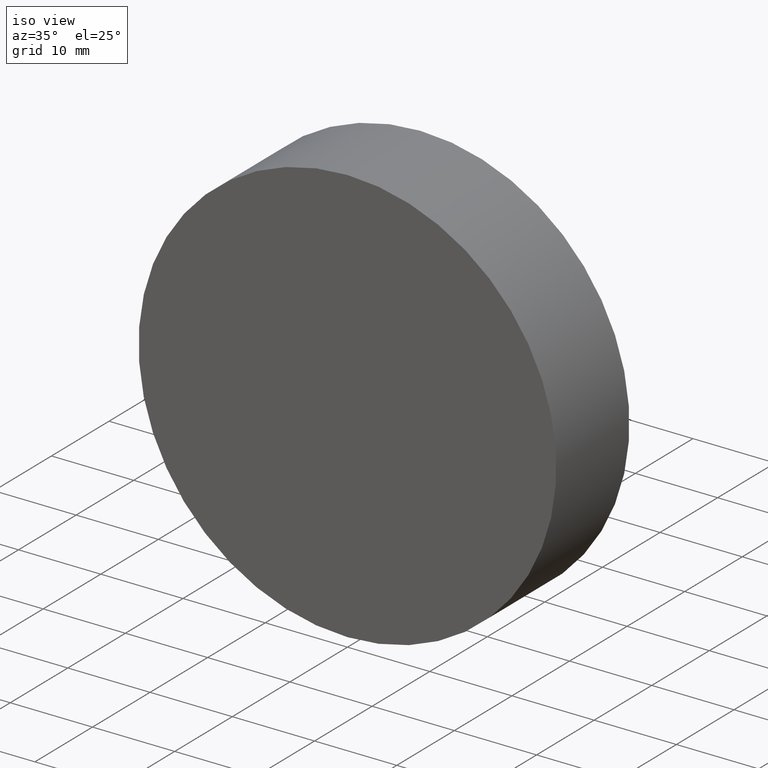
[diagram: clean part render]
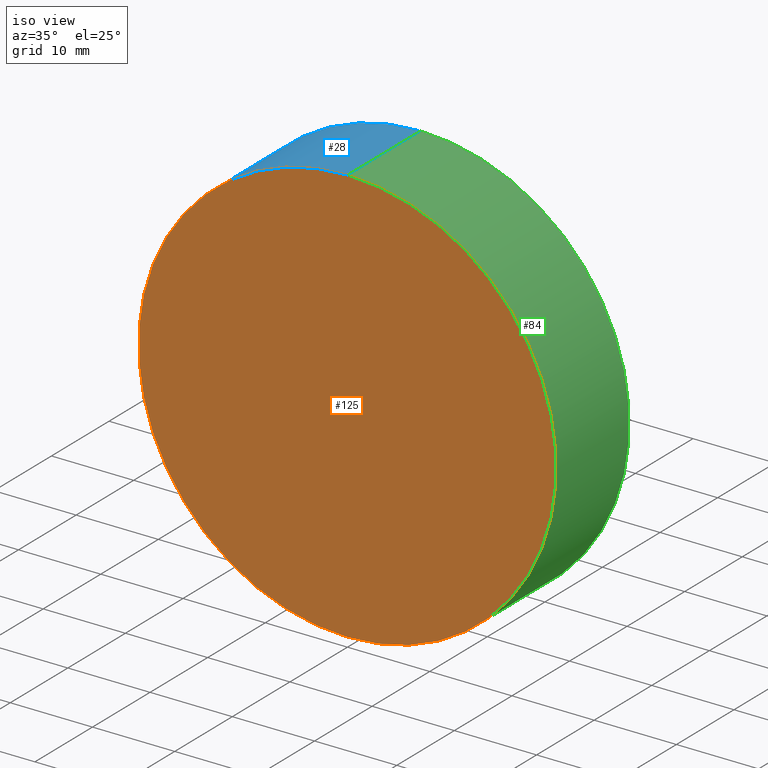
[diagram: same view with three faces highlighted in distinct colors, each labeled with its STEP entity id]
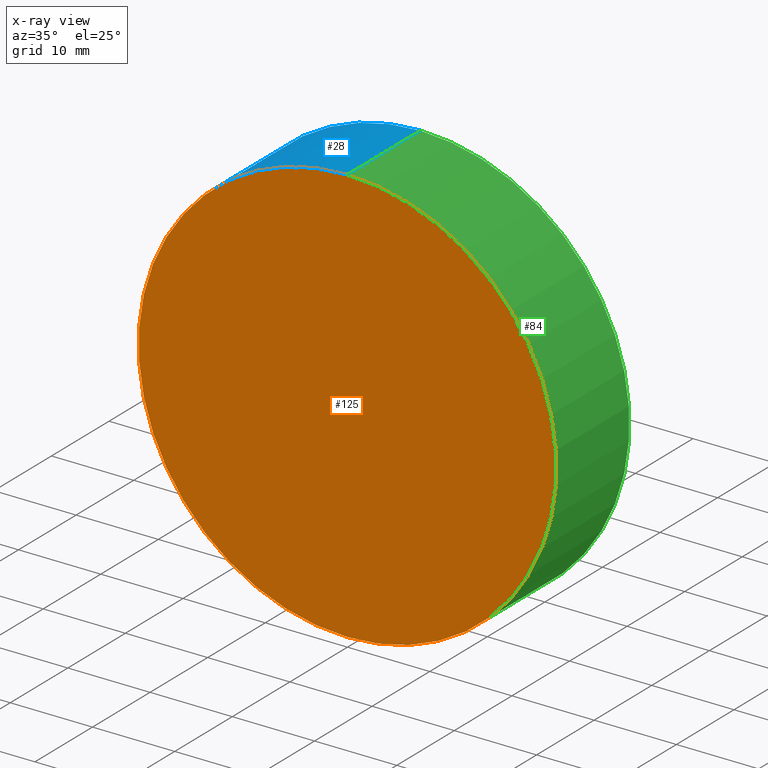
[diagram: x-ray of the same camera — body ghosted, the three highlighted faces saturated]
A machine part, iso view with three faces highlighted in distinct colors.
The next image is the same camera in x-ray (body ghosted, the three faces saturated) — at least one of them is partly hidden behind the body in this view.
Their STEP definitions:

[orange] entity #125 — the highlighted planar face has unit normal (0, 1, 0).
#3 = FACE_OUTER_BOUND ( 'NONE', #76, .T. ) ;
#6 = DIRECTION ( 'NONE',  ( 0.0000000000000000000, -0.0000000000000000000, 1.000000000000000000 ) ) ;
#16 = CIRCLE ( 'NONE', #68, 25.39999999999999900 ) ;
#25 = EDGE_CURVE ( 'NONE', #140, #79, #16, .T. ) ;
#30 = CARTESIAN_POINT ( 'NONE',  ( 0.0000000000000000000, 0.0000000000000000000, 0.0000000000000000000 ) ) ;
#44 = DIRECTION ( 'NONE',  ( 0.0000000000000000000, 1.000000000000000000, 0.0000000000000000000 ) ) ;
#47 = AXIS2_PLACEMENT_3D ( 'NONE', #30, #93, #6 ) ;
#48 = EDGE_CURVE ( 'NONE', #79, #140, #101, .T. ) ;
#49 = ORIENTED_EDGE ( 'NONE', *, *, #48, .F. ) ;
#53 = CARTESIAN_POINT ( 'NONE',  ( 0.0000000000000000000, 0.0000000000000000000, -25.39999999999999900 ) ) ;
#68 = AXIS2_PLACEMENT_3D ( 'NONE', #138, #75, #129 ) ;
#75 = DIRECTION ( 'NONE',  ( 0.0000000000000000000, 1.000000000000000000, 0.0000000000000000000 ) ) ;
#76 = EDGE_LOOP ( 'NONE', ( #113, #49 ) ) ;
#79 = VERTEX_POINT ( 'NONE', #105 ) ;
#93 = DIRECTION ( 'NONE',  ( 0.0000000000000000000, 1.000000000000000000, 0.0000000000000000000 ) ) ;
#101 = CIRCLE ( 'NONE', #112, 25.39999999999999900 ) ;
#105 = CARTESIAN_POINT ( 'NONE',  ( 3.110602869834276900E-015, 0.0000000000000000000, 25.39999999999999900 ) ) ;
#112 = AXIS2_PLACEMENT_3D ( 'NONE', #128, #44, #116 ) ;
#113 = ORIENTED_EDGE ( 'NONE', *, *, #25, .F. ) ;
#116 = DIRECTION ( 'NONE',  ( 0.0000000000000000000, 0.0000000000000000000, 1.000000000000000000 ) ) ;
#125 = ADVANCED_FACE ( 'NONE', ( #3 ), #139, .F. ) ;
#128 = CARTESIAN_POINT ( 'NONE',  ( 0.0000000000000000000, 0.0000000000000000000, 0.0000000000000000000 ) ) ;
#129 = DIRECTION ( 'NONE',  ( 0.0000000000000000000, 0.0000000000000000000, 1.000000000000000000 ) ) ;
#138 = CARTESIAN_POINT ( 'NONE',  ( 0.0000000000000000000, 0.0000000000000000000, 0.0000000000000000000 ) ) ;
#139 = PLANE ( 'NONE',  #47 ) ;
#140 = VERTEX_POINT ( 'NONE', #53 ) ;

[blue] entity #28 — the highlighted cylindrical surface (partial cylindrical patch) has radius 25.4 mm, axis along (-0, -1, -0).
#2 = VERTEX_POINT ( 'NONE', #115 ) ;
#10 = VERTEX_POINT ( 'NONE', #51 ) ;
#11 = DIRECTION ( 'NONE',  ( 0.0000000000000000000, 0.0000000000000000000, -1.000000000000000000 ) ) ;
#15 = EDGE_CURVE ( 'NONE', #2, #10, #82, .T. ) ;
#16 = CIRCLE ( 'NONE', #68, 25.39999999999999900 ) ;
#18 = DIRECTION ( 'NONE',  ( -0.0000000000000000000, -1.000000000000000000, -0.0000000000000000000 ) ) ;
#22 = VECTOR ( 'NONE', #96, 1000.000000000000000 ) ;
#24 = CYLINDRICAL_SURFACE ( 'NONE', #107, 25.39999999999999900 ) ;
#25 = EDGE_CURVE ( 'NONE', #140, #79, #16, .T. ) ;
#26 = ORIENTED_EDGE ( 'NONE', *, *, #25, .T. ) ;
#28 = ADVANCED_FACE ( 'NONE', ( #122 ), #24, .T. ) ;
#33 = EDGE_LOOP ( 'NONE', ( #88, #37, #117, #26 ) ) ;
#35 = EDGE_CURVE ( 'NONE', #10, #79, #110, .T. ) ;
#37 = ORIENTED_EDGE ( 'NONE', *, *, #15, .F. ) ;
#45 = CARTESIAN_POINT ( 'NONE',  ( 3.110602869834276900E-015, 12.69999999999999900, 25.39999999999999900 ) ) ;
#51 = CARTESIAN_POINT ( 'NONE',  ( 3.110602869834276900E-015, 12.69999999999999900, 25.39999999999999900 ) ) ;
#52 = DIRECTION ( 'NONE',  ( 0.0000000000000000000, 0.0000000000000000000, 1.000000000000000000 ) ) ;
#53 = CARTESIAN_POINT ( 'NONE',  ( 0.0000000000000000000, 0.0000000000000000000, -25.39999999999999900 ) ) ;
#55 = CARTESIAN_POINT ( 'NONE',  ( 0.0000000000000000000, 12.69999999999999900, -25.39999999999999900 ) ) ;
#57 = EDGE_CURVE ( 'NONE', #2, #140, #133, .T. ) ;
#63 = AXIS2_PLACEMENT_3D ( 'NONE', #126, #85, #52 ) ;
#65 = DIRECTION ( 'NONE',  ( -0.0000000000000000000, -1.000000000000000000, -0.0000000000000000000 ) ) ;
#66 = CARTESIAN_POINT ( 'NONE',  ( 0.0000000000000000000, 12.69999999999999900, 0.0000000000000000000 ) ) ;
#68 = AXIS2_PLACEMENT_3D ( 'NONE', #138, #75, #129 ) ;
#75 = DIRECTION ( 'NONE',  ( 0.0000000000000000000, 1.000000000000000000, 0.0000000000000000000 ) ) ;
#79 = VERTEX_POINT ( 'NONE', #105 ) ;
#82 = CIRCLE ( 'NONE', #63, 25.39999999999999900 ) ;
#85 = DIRECTION ( 'NONE',  ( 0.0000000000000000000, 1.000000000000000000, 0.0000000000000000000 ) ) ;
#88 = ORIENTED_EDGE ( 'NONE', *, *, #35, .F. ) ;
#96 = DIRECTION ( 'NONE',  ( -0.0000000000000000000, -1.000000000000000000, -0.0000000000000000000 ) ) ;
#105 = CARTESIAN_POINT ( 'NONE',  ( 3.110602869834276900E-015, 0.0000000000000000000, 25.39999999999999900 ) ) ;
#107 = AXIS2_PLACEMENT_3D ( 'NONE', #66, #18, #11 ) ;
#110 = LINE ( 'NONE', #45, #22 ) ;
#115 = CARTESIAN_POINT ( 'NONE',  ( 0.0000000000000000000, 12.69999999999999900, -25.39999999999999900 ) ) ;
#117 = ORIENTED_EDGE ( 'NONE', *, *, #57, .T. ) ;
#122 = FACE_OUTER_BOUND ( 'NONE', #33, .T. ) ;
#126 = CARTESIAN_POINT ( 'NONE',  ( 0.0000000000000000000, 12.69999999999999900, 0.0000000000000000000 ) ) ;
#129 = DIRECTION ( 'NONE',  ( 0.0000000000000000000, 0.0000000000000000000, 1.000000000000000000 ) ) ;
#132 = VECTOR ( 'NONE', #65, 1000.000000000000000 ) ;
#133 = LINE ( 'NONE', #55, #132 ) ;
#138 = CARTESIAN_POINT ( 'NONE',  ( 0.0000000000000000000, 0.0000000000000000000, 0.0000000000000000000 ) ) ;
#140 = VERTEX_POINT ( 'NONE', #53 ) ;

[green] entity #84 — the highlighted cylindrical surface (partial cylindrical patch) has radius 25.4 mm, axis along (-0, -1, -0).
#2 = VERTEX_POINT ( 'NONE', #115 ) ;
#9 = CARTESIAN_POINT ( 'NONE',  ( 0.0000000000000000000, 12.69999999999999900, 0.0000000000000000000 ) ) ;
#10 = VERTEX_POINT ( 'NONE', #51 ) ;
#19 = DIRECTION ( 'NONE',  ( -0.0000000000000000000, -1.000000000000000000, -0.0000000000000000000 ) ) ;
#22 = VECTOR ( 'NONE', #96, 1000.000000000000000 ) ;
#31 = DIRECTION ( 'NONE',  ( 0.0000000000000000000, 0.0000000000000000000, -1.000000000000000000 ) ) ;
#35 = EDGE_CURVE ( 'NONE', #10, #79, #110, .T. ) ;
#38 = AXIS2_PLACEMENT_3D ( 'NONE', #86, #19, #31 ) ;
#40 = EDGE_CURVE ( 'NONE', #10, #2, #50, .T. ) ;
#44 = DIRECTION ( 'NONE',  ( 0.0000000000000000000, 1.000000000000000000, 0.0000000000000000000 ) ) ;
#45 = CARTESIAN_POINT ( 'NONE',  ( 3.110602869834276900E-015, 12.69999999999999900, 25.39999999999999900 ) ) ;
#48 = EDGE_CURVE ( 'NONE', #79, #140, #101, .T. ) ;
#50 = CIRCLE ( 'NONE', #98, 25.39999999999999900 ) ;
#51 = CARTESIAN_POINT ( 'NONE',  ( 3.110602869834276900E-015, 12.69999999999999900, 25.39999999999999900 ) ) ;
#53 = CARTESIAN_POINT ( 'NONE',  ( 0.0000000000000000000, 0.0000000000000000000, -25.39999999999999900 ) ) ;
#55 = CARTESIAN_POINT ( 'NONE',  ( 0.0000000000000000000, 12.69999999999999900, -25.39999999999999900 ) ) ;
#57 = EDGE_CURVE ( 'NONE', #2, #140, #133, .T. ) ;
#59 = ORIENTED_EDGE ( 'NONE', *, *, #40, .F. ) ;
#60 = ORIENTED_EDGE ( 'NONE', *, *, #35, .T. ) ;
#65 = DIRECTION ( 'NONE',  ( -0.0000000000000000000, -1.000000000000000000, -0.0000000000000000000 ) ) ;
#71 = EDGE_LOOP ( 'NONE', ( #59, #60, #109, #90 ) ) ;
#73 = FACE_OUTER_BOUND ( 'NONE', #71, .T. ) ;
#79 = VERTEX_POINT ( 'NONE', #105 ) ;
#83 = CYLINDRICAL_SURFACE ( 'NONE', #38, 25.39999999999999900 ) ;
#84 = ADVANCED_FACE ( 'NONE', ( #73 ), #83, .T. ) ;
#86 = CARTESIAN_POINT ( 'NONE',  ( 0.0000000000000000000, 12.69999999999999900, 0.0000000000000000000 ) ) ;
#87 = DIRECTION ( 'NONE',  ( 0.0000000000000000000, 1.000000000000000000, 0.0000000000000000000 ) ) ;
#90 = ORIENTED_EDGE ( 'NONE', *, *, #57, .F. ) ;
#96 = DIRECTION ( 'NONE',  ( -0.0000000000000000000, -1.000000000000000000, -0.0000000000000000000 ) ) ;
#98 = AXIS2_PLACEMENT_3D ( 'NONE', #9, #87, #137 ) ;
#101 = CIRCLE ( 'NONE', #112, 25.39999999999999900 ) ;
#105 = CARTESIAN_POINT ( 'NONE',  ( 3.110602869834276900E-015, 0.0000000000000000000, 25.39999999999999900 ) ) ;
#109 = ORIENTED_EDGE ( 'NONE', *, *, #48, .T. ) ;
#110 = LINE ( 'NONE', #45, #22 ) ;
#112 = AXIS2_PLACEMENT_3D ( 'NONE', #128, #44, #116 ) ;
#115 = CARTESIAN_POINT ( 'NONE',  ( 0.0000000000000000000, 12.69999999999999900, -25.39999999999999900 ) ) ;
#116 = DIRECTION ( 'NONE',  ( 0.0000000000000000000, 0.0000000000000000000, 1.000000000000000000 ) ) ;
#128 = CARTESIAN_POINT ( 'NONE',  ( 0.0000000000000000000, 0.0000000000000000000, 0.0000000000000000000 ) ) ;
#132 = VECTOR ( 'NONE', #65, 1000.000000000000000 ) ;
#133 = LINE ( 'NONE', #55, #132 ) ;
#137 = DIRECTION ( 'NONE',  ( 0.0000000000000000000, 0.0000000000000000000, 1.000000000000000000 ) ) ;
#140 = VERTEX_POINT ( 'NONE', #53 ) ;